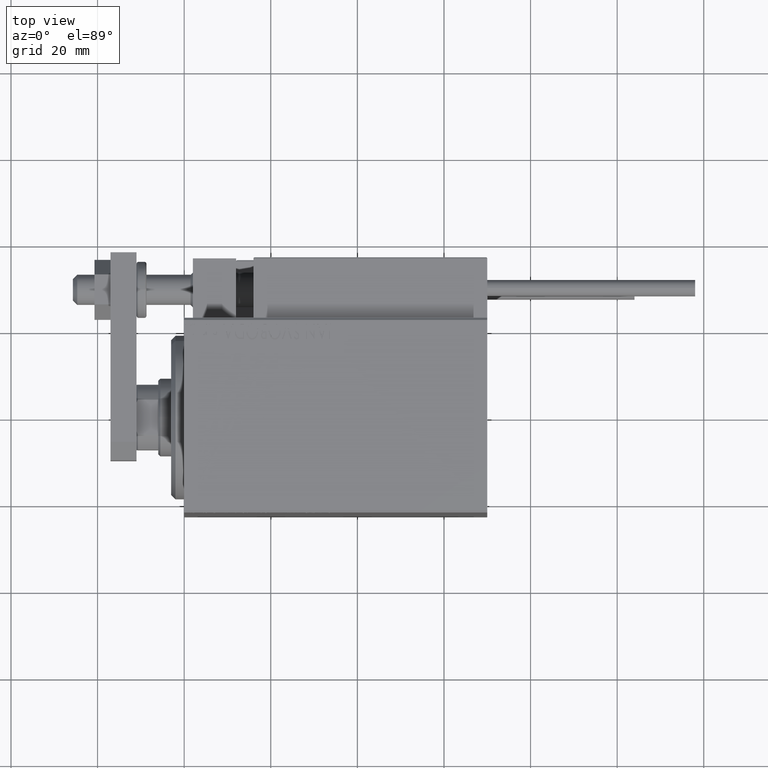
[diagram: clean part render]
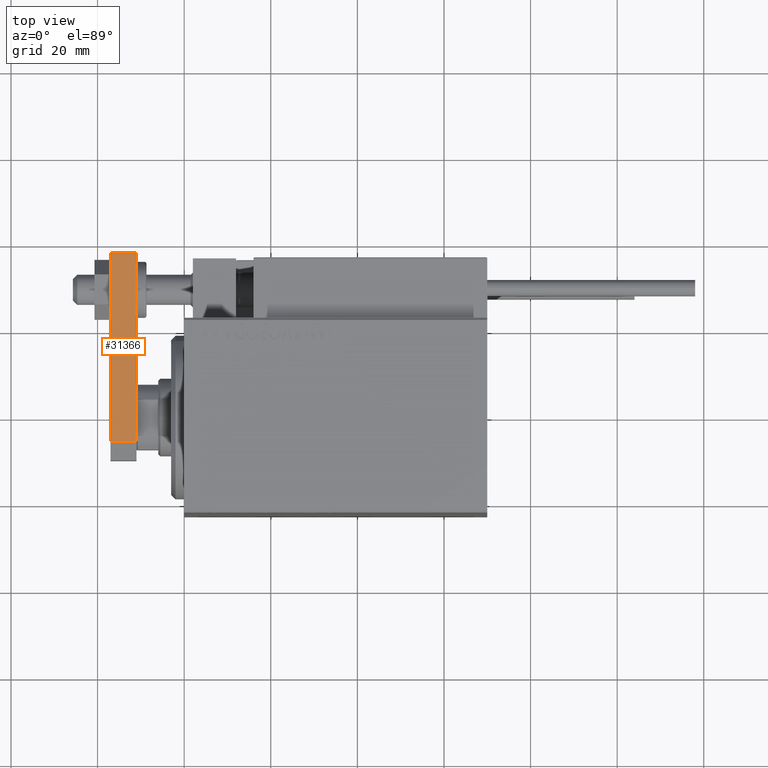
[diagram: same view with one face highlighted and labeled with its STEP entity id]
A machine part, top view. The second image highlights one B-rep face of the part: STEP entity #31366.
In plain terms, the highlighted planar face has unit normal (-0, -0, -1).
Its self-contained STEP definition (entity closure, byte-faithful):
#1448 = DIRECTION ( 'NONE',  ( 7.228014483236695816E-17, -1.000000000000000000, 0.000000000000000000 ) ) ;
#2206 = LINE ( 'NONE', #20797, #3506 ) ;
#3506 = VECTOR ( 'NONE', #24867, 1000.000000000000000 ) ;
#5271 = DIRECTION ( 'NONE',  ( -1.000000000000000000, -7.228014483236695816E-17, 0.000000000000000000 ) ) ;
#9586 = EDGE_CURVE ( 'NONE', #9623, #45413, #44452, .T. ) ;
#9623 = VERTEX_POINT ( 'NONE', #37861 ) ;
#10887 = EDGE_CURVE ( 'NONE', #45413, #34898, #2206, .T. ) ;
#11623 = ORIENTED_EDGE ( 'NONE', *, *, #26247, .F. ) ;
#11873 = CARTESIAN_POINT ( 'NONE',  ( 10.00000000000000178, 48.00000000000000000, 6.000000000000000000 ) ) ;
#12362 = VERTEX_POINT ( 'NONE', #20624 ) ;
#14809 = CARTESIAN_POINT ( 'NONE',  ( 10.00000000000000533, 0.000000000000000000, 6.000000000000000000 ) ) ;
#16120 = EDGE_LOOP ( 'NONE', ( #11623, #19861, #24069, #30028 ) ) ;
#19861 = ORIENTED_EDGE ( 'NONE', *, *, #9586, .T. ) ;
#20624 = CARTESIAN_POINT ( 'NONE',  ( 10.00000000000000178, 48.00000000000000000, 6.000000000000000000 ) ) ;
#20797 = CARTESIAN_POINT ( 'NONE',  ( 10.00000000000000533, 0.000000000000000000, 0.000000000000000000 ) ) ;
#23474 = AXIS2_PLACEMENT_3D ( 'NONE', #24622, #5271, #1448 ) ;
#24069 = ORIENTED_EDGE ( 'NONE', *, *, #10887, .T. ) ;
#24622 = CARTESIAN_POINT ( 'NONE',  ( 10.00000000000000533, 0.000000000000000000, 6.000000000000000000 ) ) ;
#24844 = CARTESIAN_POINT ( 'NONE',  ( 10.00000000000000178, 48.00000000000000000, 0.000000000000000000 ) ) ;
#24867 = DIRECTION ( 'NONE',  ( -7.228014483236695816E-17, 1.000000000000000000, 0.000000000000000000 ) ) ;
#25130 = PLANE ( 'NONE',  #23474 ) ;
#25394 = CARTESIAN_POINT ( 'NONE',  ( 10.00000000000000533, 4.239999999999986890, 6.000000000000000000 ) ) ;
#26247 = EDGE_CURVE ( 'NONE', #9623, #12362, #46074, .T. ) ;
#27892 = DIRECTION ( 'NONE',  ( -0.000000000000000000, -0.000000000000000000, -1.000000000000000000 ) ) ;
#28148 = LINE ( 'NONE', #11873, #39797 ) ;
#29493 = VECTOR ( 'NONE', #40912, 1000.000000000000000 ) ;
#30028 = ORIENTED_EDGE ( 'NONE', *, *, #33654, .F. ) ;
#30933 = CARTESIAN_POINT ( 'NONE',  ( 10.00000000000000533, 4.239999999999986890, 0.000000000000000000 ) ) ;
#31366 = ADVANCED_FACE ( 'NONE', ( #45215 ), #25130, .F. ) ;
#33182 = VECTOR ( 'NONE', #34893, 1000.000000000000000 ) ;
#33654 = EDGE_CURVE ( 'NONE', #12362, #34898, #28148, .T. ) ;
#34893 = DIRECTION ( 'NONE',  ( -7.228014483236695816E-17, 1.000000000000000000, 0.000000000000000000 ) ) ;
#34898 = VERTEX_POINT ( 'NONE', #24844 ) ;
#37861 = CARTESIAN_POINT ( 'NONE',  ( 10.00000000000000533, 4.239999999999986890, 6.000000000000000000 ) ) ;
#39797 = VECTOR ( 'NONE', #27892, 1000.000000000000000 ) ;
#40912 = DIRECTION ( 'NONE',  ( 0.000000000000000000, 0.000000000000000000, -1.000000000000000000 ) ) ;
#44452 = LINE ( 'NONE', #25394, #29493 ) ;
#45215 = FACE_OUTER_BOUND ( 'NONE', #16120, .T. ) ;
#45413 = VERTEX_POINT ( 'NONE', #30933 ) ;
#46074 = LINE ( 'NONE', #14809, #33182 ) ;